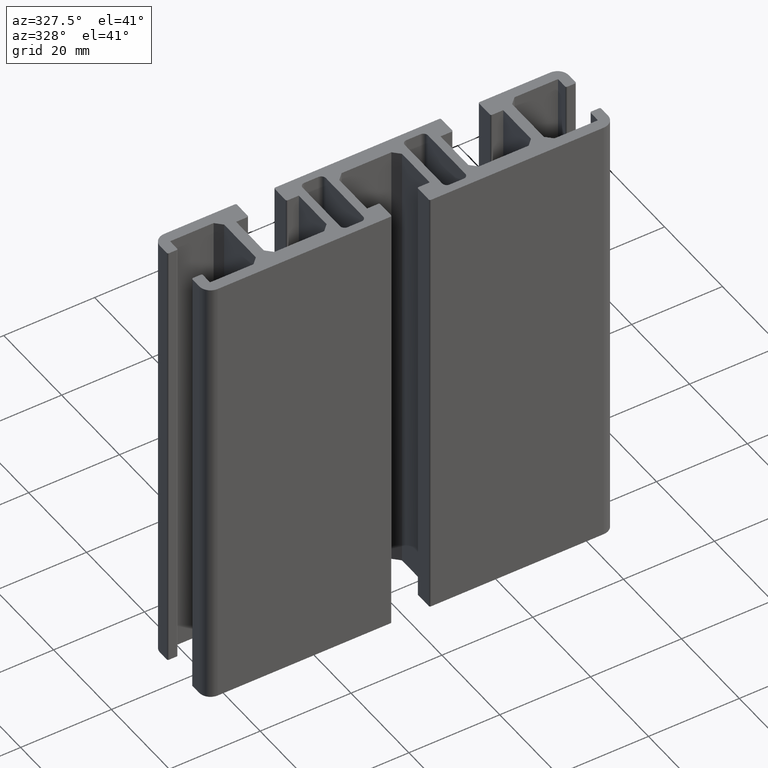
[diagram: clean part render]
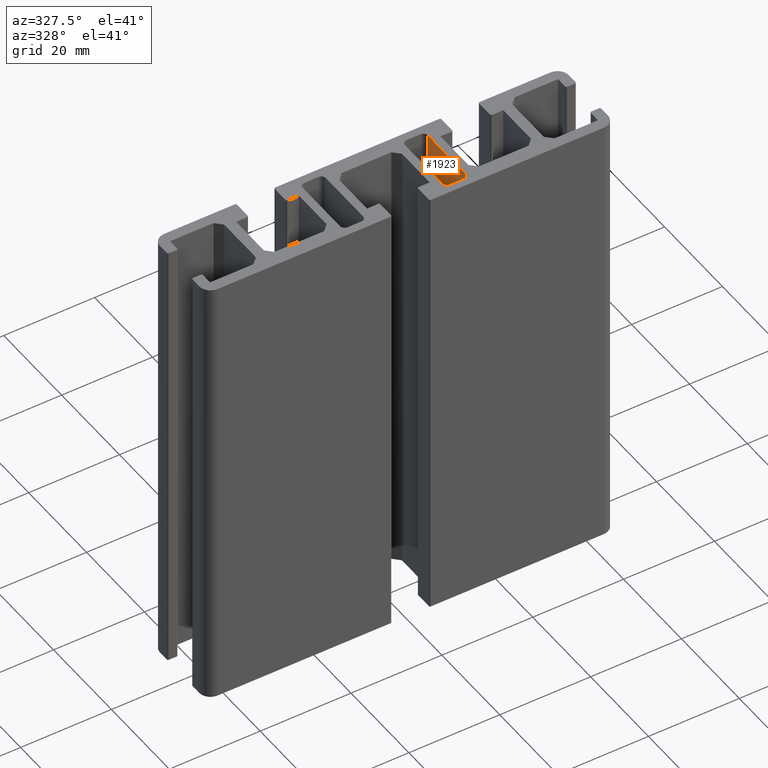
[diagram: same view with one face highlighted and labeled with its STEP entity id]
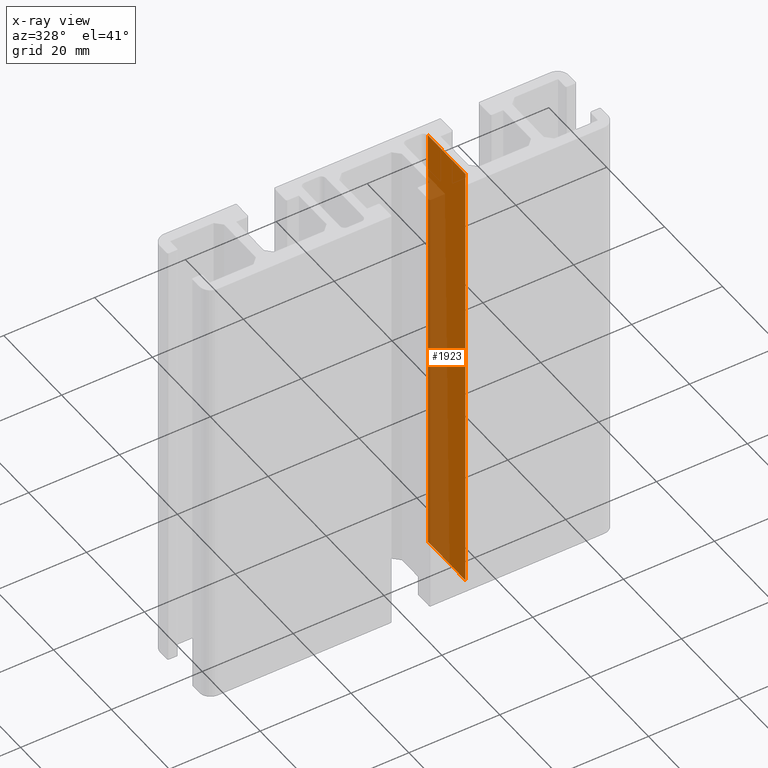
[diagram: x-ray of the same camera — body ghosted, the highlighted face saturated]
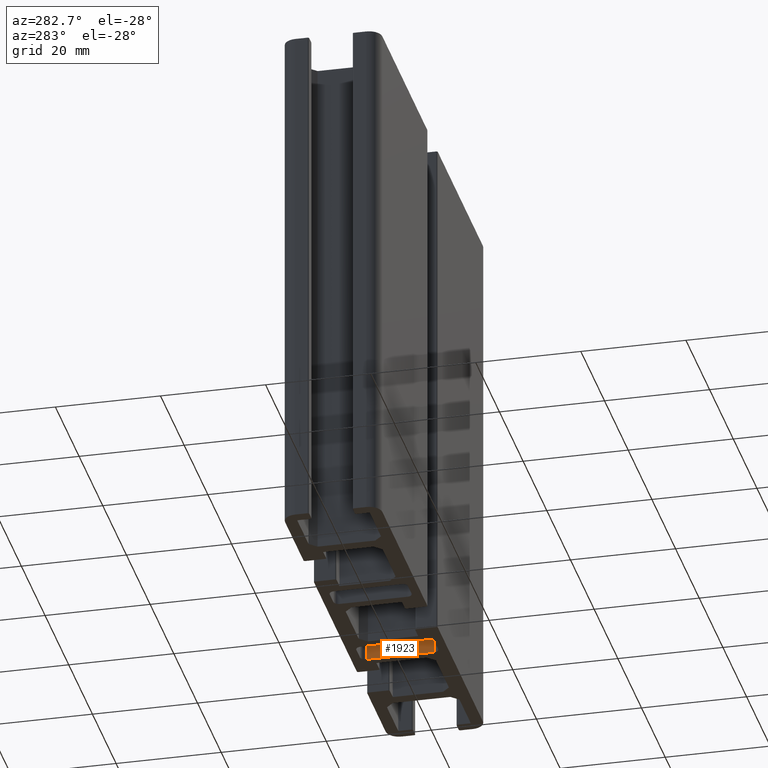
[diagram: same view with one face highlighted and labeled with its STEP entity id]
A machine part, auxiliary view. The second image highlights one B-rep face of the part: STEP entity #1923.
The next image is the same camera in x-ray: the body ghosted, the highlighted face saturated — about 46% of this face is hidden behind the body in this view.
A second angle (auxiliary view) of the same face is appended — the face is thin or edge-on in the first view.
In plain terms, the highlighted planar face has unit normal (1, 0, 0).
Its self-contained STEP definition (entity closure, byte-faithful):
#70=PLANE('',#2075);
#161=FACE_OUTER_BOUND('',#257,.T.);
#257=EDGE_LOOP('',(#1561,#1562,#1563,#1564));
#464=LINE('',#3128,#682);
#465=LINE('',#3132,#683);
#466=LINE('',#3134,#684);
#467=LINE('',#3135,#685);
#682=VECTOR('',#2552,100.);
#683=VECTOR('',#2557,12.900000000008);
#684=VECTOR('',#2558,100.);
#685=VECTOR('',#2559,12.900000000008);
#945=VERTEX_POINT('',#3125);
#946=VERTEX_POINT('',#3127);
#947=VERTEX_POINT('',#3131);
#948=VERTEX_POINT('',#3133);
#1205=EDGE_CURVE('',#946,#945,#464,.T.);
#1207=EDGE_CURVE('',#947,#945,#465,.T.);
#1208=EDGE_CURVE('',#948,#947,#466,.T.);
#1209=EDGE_CURVE('',#946,#948,#467,.T.);
#1561=ORIENTED_EDGE('',*,*,#1207,.F.);
#1562=ORIENTED_EDGE('',*,*,#1208,.F.);
#1563=ORIENTED_EDGE('',*,*,#1209,.F.);
#1564=ORIENTED_EDGE('',*,*,#1205,.T.);
#1923=ADVANCED_FACE('',(#161),#70,.F.);
#2075=AXIS2_PLACEMENT_3D('',#3130,#2555,#2556);
#2552=DIRECTION('',(0.,0.,1.));
#2555=DIRECTION('center_axis',(1.,0.,0.));
#2556=DIRECTION('ref_axis',(0.,0.,-1.));
#2557=DIRECTION('',(0.,-1.,0.));
#2558=DIRECTION('',(0.,0.,1.));
#2559=DIRECTION('',(0.,1.,0.));
#3125=CARTESIAN_POINT('',(13.79628,-6.450000000004,100.));
#3127=CARTESIAN_POINT('',(13.79628,-6.450000000004,0.));
#3128=CARTESIAN_POINT('',(13.79628,-6.450000000004,0.));
#3130=CARTESIAN_POINT('Origin',(13.79628,6.450000000004,0.));
#3131=CARTESIAN_POINT('',(13.79628,6.450000000004,100.));
#3132=CARTESIAN_POINT('',(13.79628,3.225000000002,100.));
#3133=CARTESIAN_POINT('',(13.79628,6.450000000004,0.));
#3134=CARTESIAN_POINT('',(13.79628,6.450000000004,0.));
#3135=CARTESIAN_POINT('',(13.79628,3.225000000002,0.));